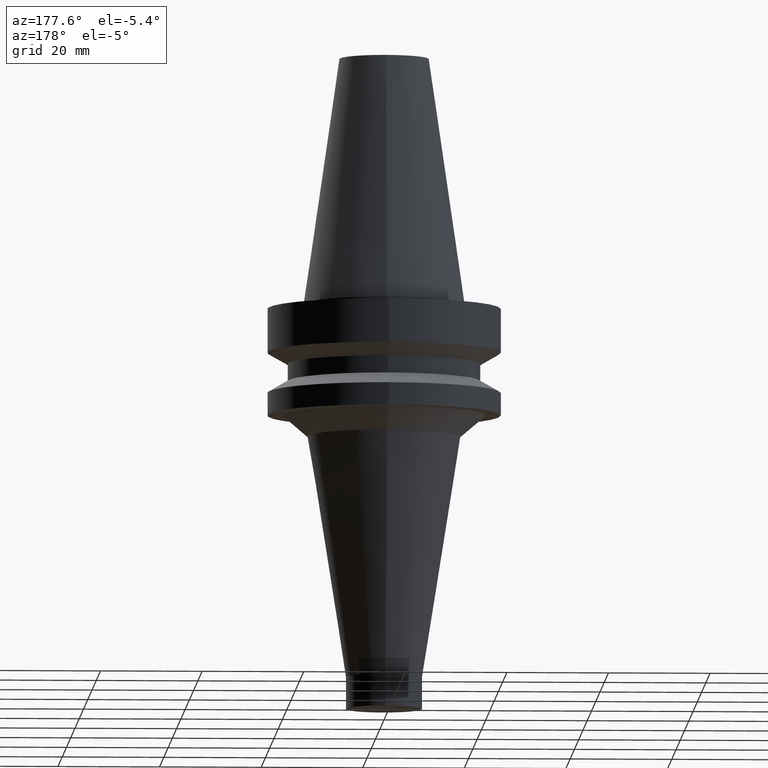
[diagram: clean part render]
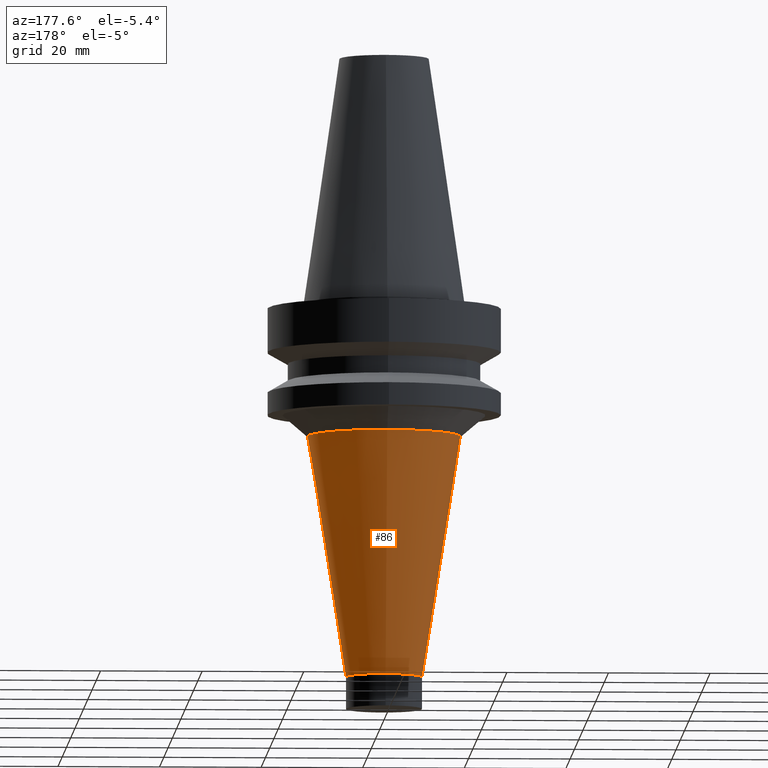
[diagram: same view with one face highlighted and labeled with its STEP entity id]
A machine part, auxiliary view. The second image highlights one B-rep face of the part: STEP entity #86.
In plain terms, the highlighted conical surface has half-angle 9.048 deg.
Its self-contained STEP definition (entity closure, byte-faithful):
#86=ADVANCED_FACE('',(#122,#123),#124,.T.);
#122=FACE_BOUND('',#162,.T.);
#123=FACE_BOUND('',#163,.T.);
#124=CONICAL_SURFACE('',#164,11.282332515,0.157924812146036);
#162=EDGE_LOOP('',(#224));
#163=EDGE_LOOP('',(#225));
#164=AXIS2_PLACEMENT_3D('',#226,#227,#228);
#224=ORIENTED_EDGE('',*,*,#249,.F.);
#225=ORIENTED_EDGE('',*,*,#248,.T.);
#226=CARTESIAN_POINT('',(3.05850818665682E-015,6.11701637331363E-015,-49.94922926));
#227=DIRECTION('',(-6.12323399573677E-017,-1.22464679914735E-016,1.0));
#228=DIRECTION('',(-1.23259516440783E-032,1.0,1.22464679914735E-016));
#248=EDGE_CURVE('',#271,#271,#272,.T.);
#249=EDGE_CURVE('',#273,#273,#274,.T.);
#271=VERTEX_POINT('',#297);
#272=CIRCLE('',#298,15.06466503);
#273=VERTEX_POINT('',#299);
#274=CIRCLE('',#300,7.5);
#297=CARTESIAN_POINT('',(1.60419291845564E-015,15.06466503,-26.19845852));
#298=AXIS2_PLACEMENT_3D('',#333,#334,#335);
#299=CARTESIAN_POINT('',(4.512823454858E-015,7.50000000000001,-73.7));
#300=AXIS2_PLACEMENT_3D('',#336,#337,#338);
#333=CARTESIAN_POINT('',(1.60419291845564E-015,3.20838583691127E-015,-26.19845852));
#334=DIRECTION('',(6.12323399573677E-017,1.22464679914735E-016,-1.0));
#335=DIRECTION('',(-1.23259516440783E-032,1.0,1.22464679914735E-016));
#336=CARTESIAN_POINT('',(4.512823454858E-015,9.02564690971599E-015,-73.7));
#337=DIRECTION('',(6.12323399573677E-017,1.22464679914735E-016,-1.0));
#338=DIRECTION('',(-1.23259516440783E-032,1.0,1.22464679914735E-016));